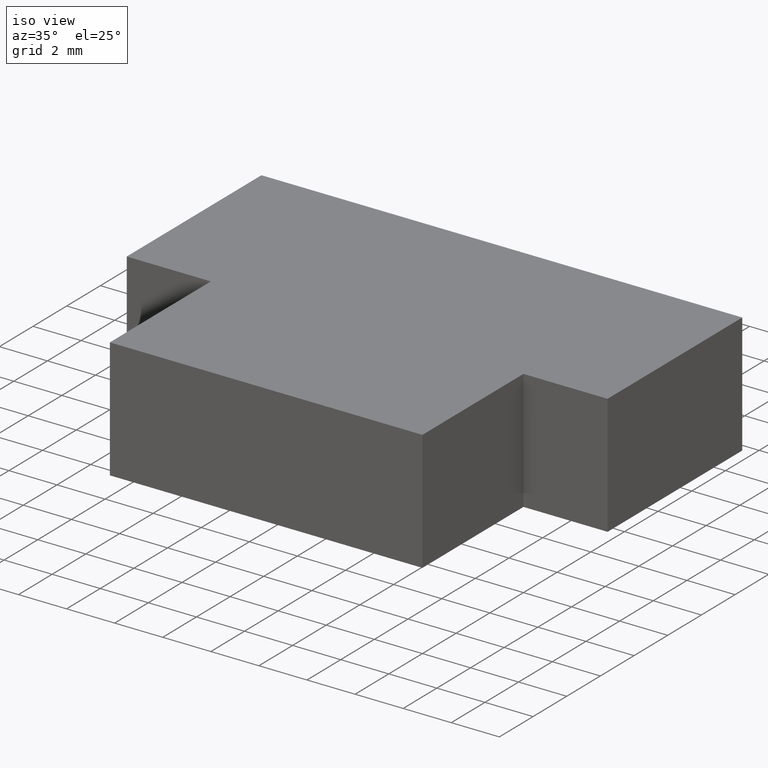
[diagram: clean part render]
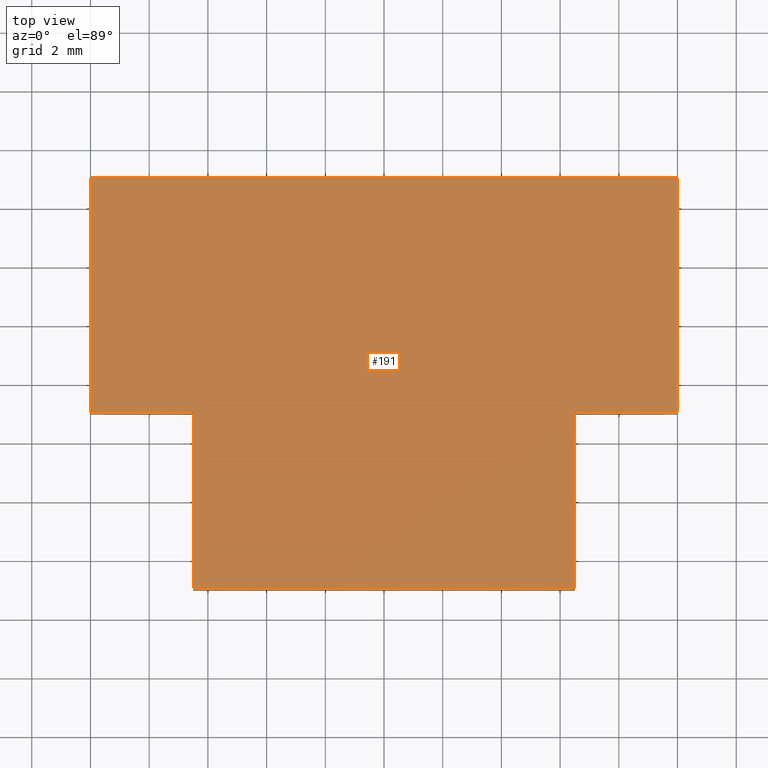
[diagram: tour spotlight — one face highlighted and labeled with its STEP entity id]
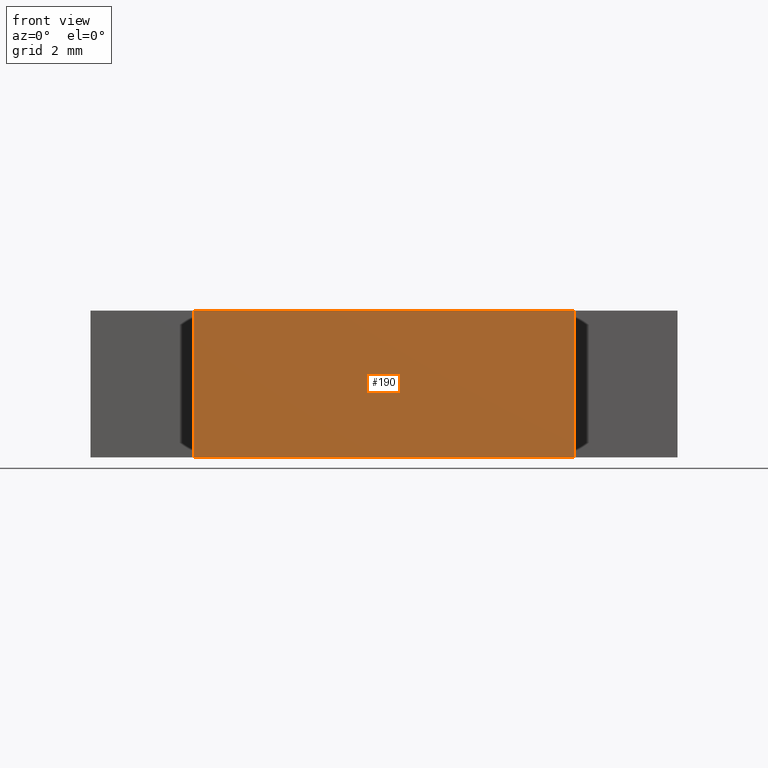
[diagram: tour spotlight — one face highlighted and labeled with its STEP entity id]
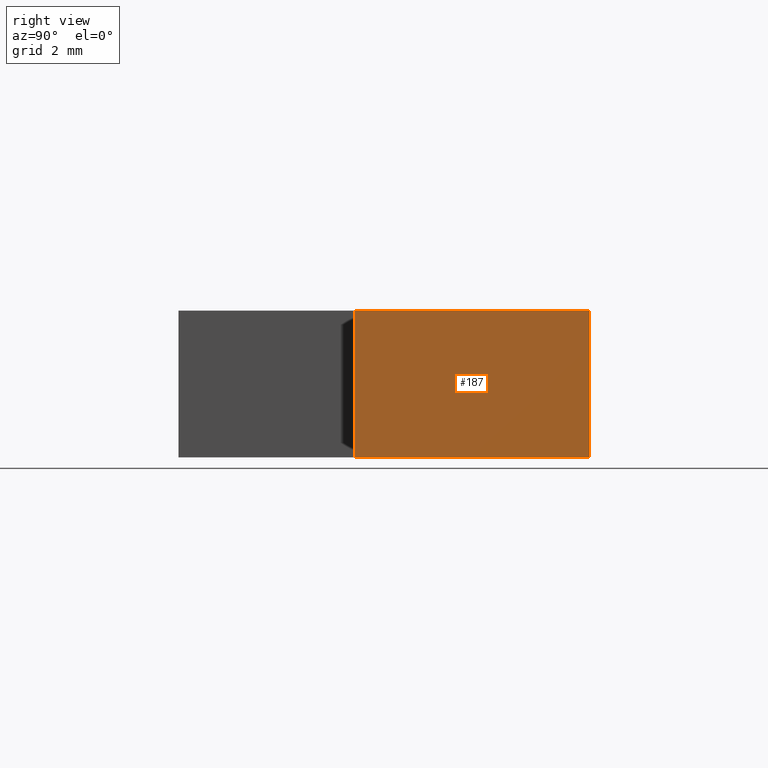
[diagram: tour spotlight — one face highlighted and labeled with its STEP entity id]
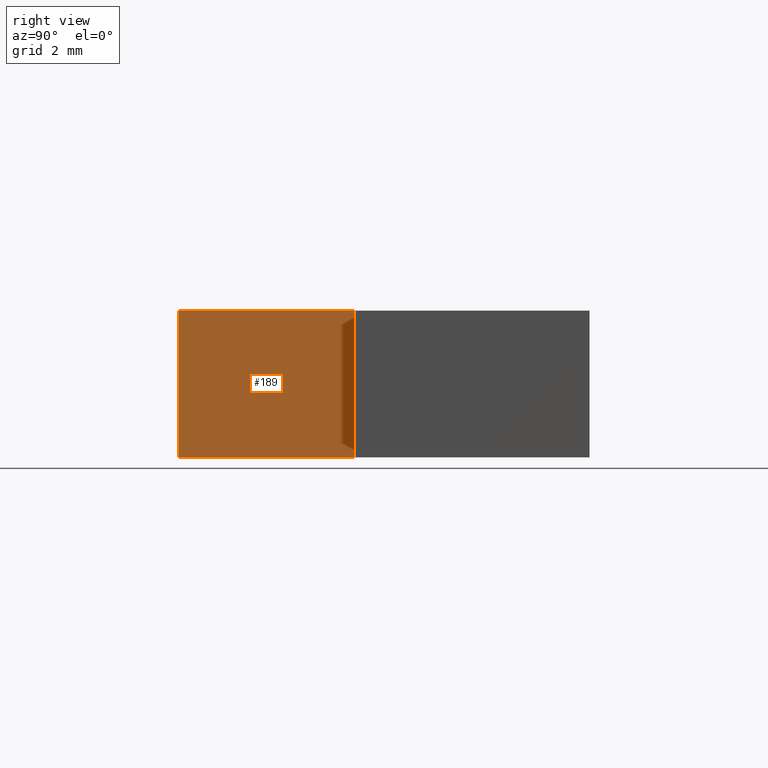
[diagram: tour spotlight — one face highlighted and labeled with its STEP entity id]
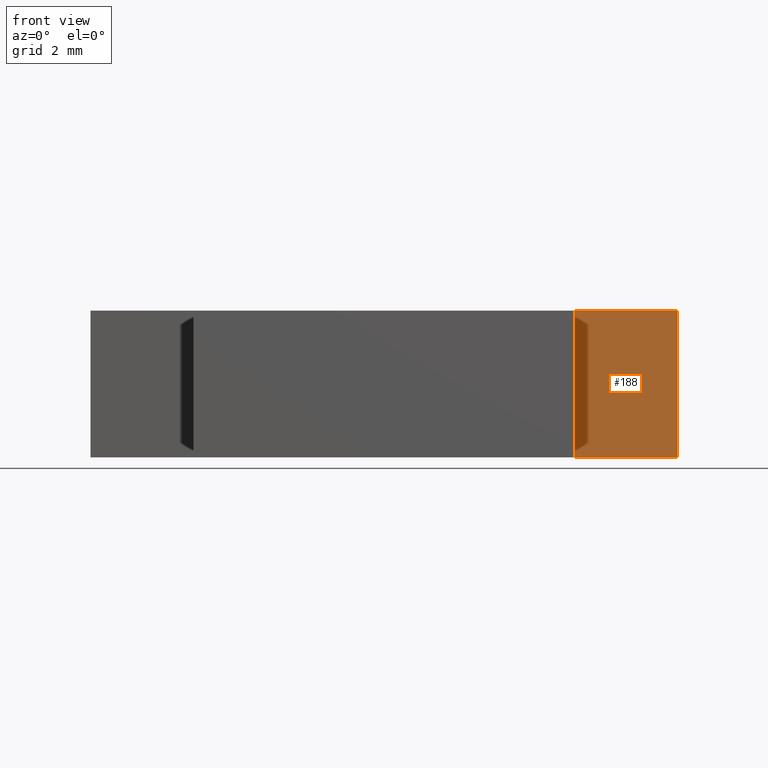
[diagram: tour spotlight — one face highlighted and labeled with its STEP entity id]
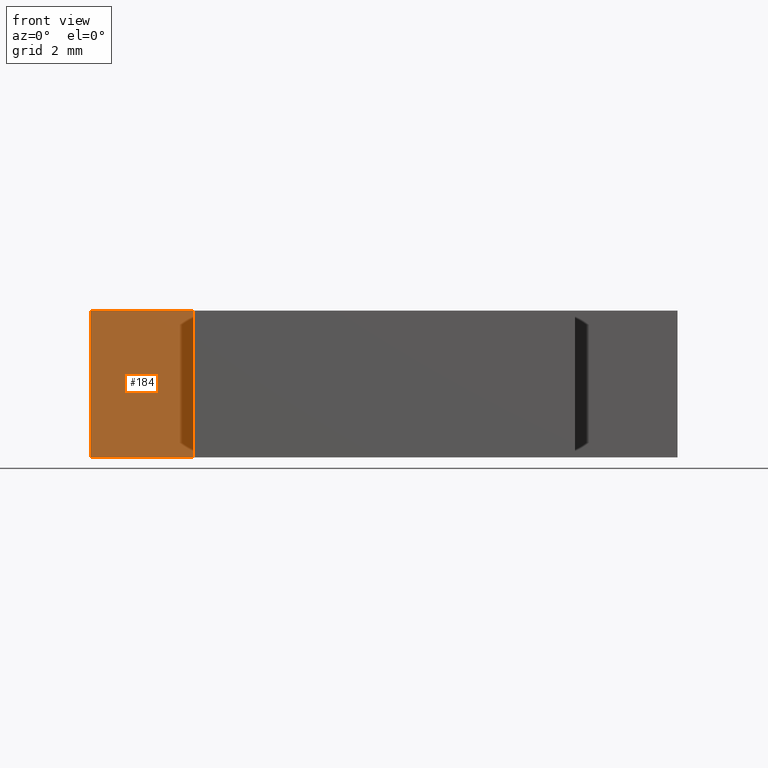
[diagram: tour spotlight — one face highlighted and labeled with its STEP entity id]
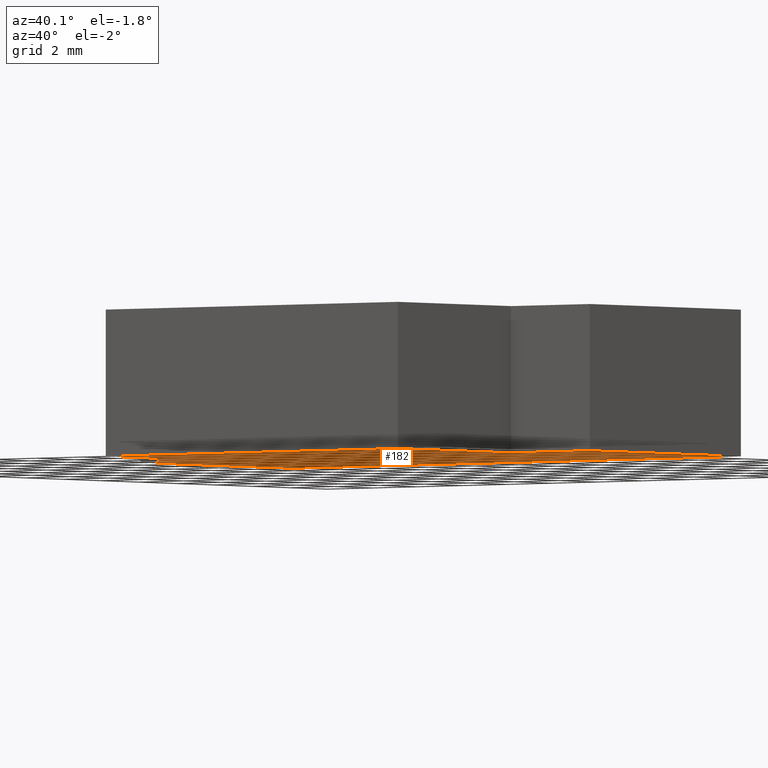
[diagram: tour spotlight — one face highlighted and labeled with its STEP entity id]
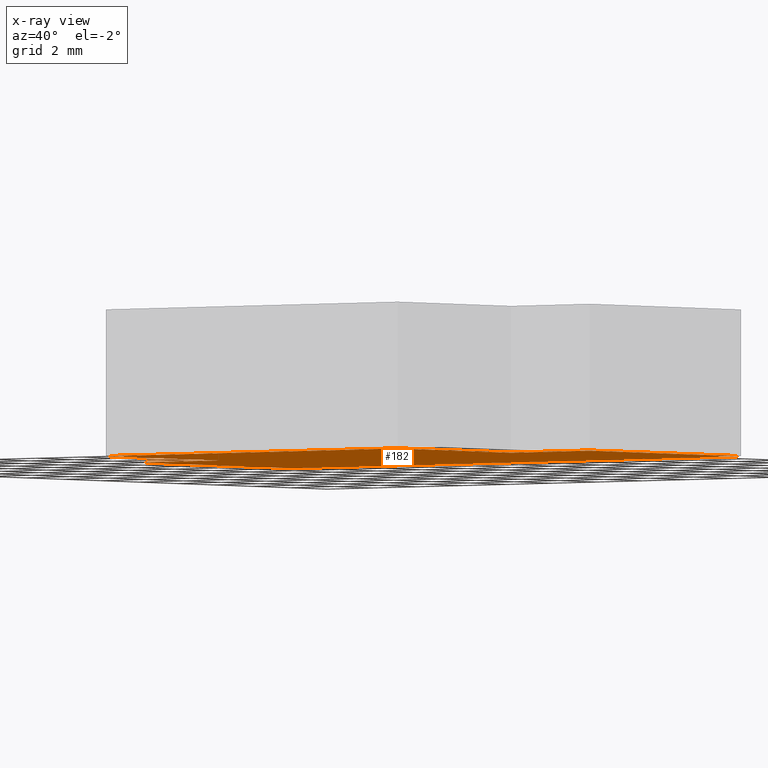
[diagram: x-ray of the same camera — body ghosted, this tour face saturated]
A machine part: a face-by-face anatomy tour. The part has 10 B-rep faces; the first image is the clean iso view, then the 7 largest visible faces are spotlighted one at a time (largest first), each with its STEP entity span.

Face 1 — top view, entity #191. In plain terms, the highlighted planar face has unit normal (0, 0, 1).
Definition (entity closure, byte-faithful):
#25=FACE_OUTER_BOUND('',#35,.T.);
#35=EDGE_LOOP('',(#164,#165,#166,#167,#168,#169,#170,#171));
#44=LINE('',#292,#68);
#47=LINE('',#297,#71);
#49=LINE('',#301,#73);
#51=LINE('',#305,#75);
#53=LINE('',#309,#77);
#55=LINE('',#313,#79);
#57=LINE('',#317,#81);
#59=LINE('',#320,#83);
#68=VECTOR('',#239,10.);
#71=VECTOR('',#244,10.);
#73=VECTOR('',#248,10.);
#75=VECTOR('',#252,10.);
#77=VECTOR('',#256,10.);
#79=VECTOR('',#260,10.);
#81=VECTOR('',#264,10.);
#83=VECTOR('',#268,10.);
#92=VERTEX_POINT('',#290);
#93=VERTEX_POINT('',#291);
#94=VERTEX_POINT('',#296);
#95=VERTEX_POINT('',#300);
#96=VERTEX_POINT('',#304);
#97=VERTEX_POINT('',#308);
#98=VERTEX_POINT('',#312);
#99=VERTEX_POINT('',#316);
#108=EDGE_CURVE('',#92,#93,#44,.T.);
#111=EDGE_CURVE('',#93,#94,#47,.T.);
#113=EDGE_CURVE('',#94,#95,#49,.T.);
#115=EDGE_CURVE('',#95,#96,#51,.T.);
#117=EDGE_CURVE('',#96,#97,#53,.T.);
#119=EDGE_CURVE('',#97,#98,#55,.T.);
#121=EDGE_CURVE('',#98,#99,#57,.T.);
#123=EDGE_CURVE('',#99,#92,#59,.T.);
#164=ORIENTED_EDGE('',*,*,#108,.F.);
#165=ORIENTED_EDGE('',*,*,#123,.F.);
#166=ORIENTED_EDGE('',*,*,#121,.F.);
#167=ORIENTED_EDGE('',*,*,#119,.F.);
#168=ORIENTED_EDGE('',*,*,#117,.F.);
#169=ORIENTED_EDGE('',*,*,#115,.F.);
#170=ORIENTED_EDGE('',*,*,#113,.F.);
#171=ORIENTED_EDGE('',*,*,#111,.F.);
#181=PLANE('',#224);
#191=ADVANCED_FACE('',(#25),#181,.T.);
#224=AXIS2_PLACEMENT_3D('',#321,#269,#270);
#239=DIRECTION('',(-1.85037170770859E-16,1.,0.));
#244=DIRECTION('',(-1.,-1.18952466924124E-16,0.));
#248=DIRECTION('',(0.,1.,0.));
#252=DIRECTION('',(1.,0.,0.));
#256=DIRECTION('',(0.,-1.,0.));
#260=DIRECTION('',(-1.,1.18952466924124E-16,0.));
#264=DIRECTION('',(-1.85037170770859E-16,-1.,0.));
#268=DIRECTION('',(-1.,0.,0.));
#269=DIRECTION('center_axis',(0.,0.,1.));
#270=DIRECTION('ref_axis',(1.,0.,0.));
#290=CARTESIAN_POINT('',(-6.5,-7.,2.5));
#291=CARTESIAN_POINT('',(-6.5,-0.999999999999996,2.5));
#292=CARTESIAN_POINT('',(-6.5,-7.,2.5));
#296=CARTESIAN_POINT('',(-10.,-0.999999999999996,2.5));
#297=CARTESIAN_POINT('',(-6.5,-0.999999999999996,2.5));
#300=CARTESIAN_POINT('',(-10.,7.,2.5));
#301=CARTESIAN_POINT('',(-10.,-0.999999999999996,2.5));
#304=CARTESIAN_POINT('',(10.,7.,2.5));
#305=CARTESIAN_POINT('',(-10.,7.,2.5));
#308=CARTESIAN_POINT('',(10.,-0.999999999999996,2.5));
#309=CARTESIAN_POINT('',(10.,7.,2.5));
#312=CARTESIAN_POINT('',(6.5,-0.999999999999996,2.5));
#313=CARTESIAN_POINT('',(10.,-0.999999999999996,2.5));
#316=CARTESIAN_POINT('',(6.5,-7.,2.5));
#317=CARTESIAN_POINT('',(6.5,-0.999999999999996,2.5));
#320=CARTESIAN_POINT('',(6.5,-7.,2.5));
#321=CARTESIAN_POINT('Origin',(3.46944695195361E-16,0.61764705882353,2.5));

Face 2 — front view, entity #190. In plain terms, the highlighted planar face has unit normal (0, -1, 0).
Definition (entity closure, byte-faithful):
#24=FACE_OUTER_BOUND('',#34,.T.);
#34=EDGE_LOOP('',(#160,#161,#162,#163));
#37=LINE('',#277,#61);
#46=LINE('',#294,#70);
#58=LINE('',#318,#82);
#59=LINE('',#320,#83);
#61=VECTOR('',#230,10.);
#70=VECTOR('',#241,10.);
#82=VECTOR('',#265,10.);
#83=VECTOR('',#268,10.);
#84=VERTEX_POINT('',#273);
#86=VERTEX_POINT('',#276);
#92=VERTEX_POINT('',#290);
#99=VERTEX_POINT('',#316);
#101=EDGE_CURVE('',#86,#84,#37,.T.);
#110=EDGE_CURVE('',#92,#86,#46,.T.);
#122=EDGE_CURVE('',#84,#99,#58,.T.);
#123=EDGE_CURVE('',#99,#92,#59,.T.);
#160=ORIENTED_EDGE('',*,*,#123,.T.);
#161=ORIENTED_EDGE('',*,*,#110,.T.);
#162=ORIENTED_EDGE('',*,*,#101,.T.);
#163=ORIENTED_EDGE('',*,*,#122,.T.);
#180=PLANE('',#223);
#190=ADVANCED_FACE('',(#24),#180,.T.);
#223=AXIS2_PLACEMENT_3D('',#319,#266,#267);
#230=DIRECTION('',(1.,0.,0.));
#241=DIRECTION('',(0.,0.,-1.));
#265=DIRECTION('',(0.,0.,1.));
#266=DIRECTION('center_axis',(0.,-1.,0.));
#267=DIRECTION('ref_axis',(0.,0.,-1.));
#268=DIRECTION('',(-1.,0.,0.));
#273=CARTESIAN_POINT('',(6.5,-7.,-2.5));
#276=CARTESIAN_POINT('',(-6.5,-7.,-2.5));
#277=CARTESIAN_POINT('',(6.5,-7.,-2.5));
#290=CARTESIAN_POINT('',(-6.5,-7.,2.5));
#294=CARTESIAN_POINT('',(-6.5,-7.,0.));
#316=CARTESIAN_POINT('',(6.5,-7.,2.5));
#318=CARTESIAN_POINT('',(6.5,-7.,0.));
#319=CARTESIAN_POINT('Origin',(6.5,-7.,0.));
#320=CARTESIAN_POINT('',(6.5,-7.,2.5));

Face 3 — right view, entity #187. In plain terms, the highlighted planar face has unit normal (1, 0, 0).
Definition (entity closure, byte-faithful):
#21=FACE_OUTER_BOUND('',#31,.T.);
#31=EDGE_LOOP('',(#148,#149,#150,#151));
#42=LINE('',#287,#66);
#52=LINE('',#306,#76);
#53=LINE('',#309,#77);
#54=LINE('',#310,#78);
#66=VECTOR('',#235,10.);
#76=VECTOR('',#253,10.);
#77=VECTOR('',#256,10.);
#78=VECTOR('',#257,10.);
#90=VERTEX_POINT('',#284);
#91=VERTEX_POINT('',#286);
#96=VERTEX_POINT('',#304);
#97=VERTEX_POINT('',#308);
#106=EDGE_CURVE('',#91,#90,#42,.T.);
#116=EDGE_CURVE('',#96,#90,#52,.T.);
#117=EDGE_CURVE('',#96,#97,#53,.T.);
#118=EDGE_CURVE('',#97,#91,#54,.T.);
#148=ORIENTED_EDGE('',*,*,#117,.T.);
#149=ORIENTED_EDGE('',*,*,#118,.T.);
#150=ORIENTED_EDGE('',*,*,#106,.T.);
#151=ORIENTED_EDGE('',*,*,#116,.F.);
#177=PLANE('',#220);
#187=ADVANCED_FACE('',(#21),#177,.T.);
#220=AXIS2_PLACEMENT_3D('',#307,#254,#255);
#235=DIRECTION('',(0.,1.,0.));
#253=DIRECTION('',(0.,0.,-1.));
#254=DIRECTION('center_axis',(1.,0.,0.));
#255=DIRECTION('ref_axis',(0.,0.,-1.));
#256=DIRECTION('',(0.,-1.,0.));
#257=DIRECTION('',(0.,0.,-1.));
#284=CARTESIAN_POINT('',(10.,7.,-2.5));
#286=CARTESIAN_POINT('',(10.,-0.999999999999996,-2.5));
#287=CARTESIAN_POINT('',(10.,7.,-2.5));
#304=CARTESIAN_POINT('',(10.,7.,2.5));
#306=CARTESIAN_POINT('',(10.,7.,0.));
#307=CARTESIAN_POINT('Origin',(10.,7.,0.));
#308=CARTESIAN_POINT('',(10.,-0.999999999999996,2.5));
#309=CARTESIAN_POINT('',(10.,7.,2.5));
#310=CARTESIAN_POINT('',(10.,-0.999999999999996,0.));

Face 4 — right view, entity #189. In plain terms, the highlighted planar face has unit normal (1, -0, 0).
Definition (entity closure, byte-faithful):
#23=FACE_OUTER_BOUND('',#33,.T.);
#33=EDGE_LOOP('',(#156,#157,#158,#159));
#36=LINE('',#275,#60);
#56=LINE('',#314,#80);
#57=LINE('',#317,#81);
#58=LINE('',#318,#82);
#60=VECTOR('',#229,10.);
#80=VECTOR('',#261,10.);
#81=VECTOR('',#264,10.);
#82=VECTOR('',#265,10.);
#84=VERTEX_POINT('',#273);
#85=VERTEX_POINT('',#274);
#98=VERTEX_POINT('',#312);
#99=VERTEX_POINT('',#316);
#100=EDGE_CURVE('',#84,#85,#36,.T.);
#120=EDGE_CURVE('',#98,#85,#56,.T.);
#121=EDGE_CURVE('',#98,#99,#57,.T.);
#122=EDGE_CURVE('',#84,#99,#58,.T.);
#156=ORIENTED_EDGE('',*,*,#121,.T.);
#157=ORIENTED_EDGE('',*,*,#122,.F.);
#158=ORIENTED_EDGE('',*,*,#100,.T.);
#159=ORIENTED_EDGE('',*,*,#120,.F.);
#179=PLANE('',#222);
#189=ADVANCED_FACE('',(#23),#179,.T.);
#222=AXIS2_PLACEMENT_3D('',#315,#262,#263);
#229=DIRECTION('',(1.85037170770859E-16,1.,0.));
#261=DIRECTION('',(0.,0.,-1.));
#262=DIRECTION('center_axis',(1.,-1.85037170770859E-16,0.));
#263=DIRECTION('ref_axis',(0.,0.,-1.));
#264=DIRECTION('',(-1.85037170770859E-16,-1.,0.));
#265=DIRECTION('',(0.,0.,1.));
#273=CARTESIAN_POINT('',(6.5,-7.,-2.5));
#274=CARTESIAN_POINT('',(6.5,-0.999999999999996,-2.5));
#275=CARTESIAN_POINT('',(6.5,-0.999999999999996,-2.5));
#312=CARTESIAN_POINT('',(6.5,-0.999999999999996,2.5));
#314=CARTESIAN_POINT('',(6.5,-0.999999999999996,0.));
#315=CARTESIAN_POINT('Origin',(6.5,-0.999999999999996,0.));
#316=CARTESIAN_POINT('',(6.5,-7.,2.5));
#317=CARTESIAN_POINT('',(6.5,-0.999999999999996,2.5));
#318=CARTESIAN_POINT('',(6.5,-7.,0.));

Face 5 — front view, entity #188. In plain terms, the highlighted planar face has unit normal (-0, -1, 0).
Definition (entity closure, byte-faithful):
#22=FACE_OUTER_BOUND('',#32,.T.);
#32=EDGE_LOOP('',(#152,#153,#154,#155));
#43=LINE('',#288,#67);
#54=LINE('',#310,#78);
#55=LINE('',#313,#79);
#56=LINE('',#314,#80);
#67=VECTOR('',#236,10.);
#78=VECTOR('',#257,10.);
#79=VECTOR('',#260,10.);
#80=VECTOR('',#261,10.);
#85=VERTEX_POINT('',#274);
#91=VERTEX_POINT('',#286);
#97=VERTEX_POINT('',#308);
#98=VERTEX_POINT('',#312);
#107=EDGE_CURVE('',#85,#91,#43,.T.);
#118=EDGE_CURVE('',#97,#91,#54,.T.);
#119=EDGE_CURVE('',#97,#98,#55,.T.);
#120=EDGE_CURVE('',#98,#85,#56,.T.);
#152=ORIENTED_EDGE('',*,*,#119,.T.);
#153=ORIENTED_EDGE('',*,*,#120,.T.);
#154=ORIENTED_EDGE('',*,*,#107,.T.);
#155=ORIENTED_EDGE('',*,*,#118,.F.);
#178=PLANE('',#221);
#188=ADVANCED_FACE('',(#22),#178,.T.);
#221=AXIS2_PLACEMENT_3D('',#311,#258,#259);
#236=DIRECTION('',(1.,-1.18952466924124E-16,0.));
#257=DIRECTION('',(0.,0.,-1.));
#258=DIRECTION('center_axis',(-1.18952466924124E-16,-1.,0.));
#259=DIRECTION('ref_axis',(0.,0.,-1.));
#260=DIRECTION('',(-1.,1.18952466924124E-16,0.));
#261=DIRECTION('',(0.,0.,-1.));
#274=CARTESIAN_POINT('',(6.5,-0.999999999999996,-2.5));
#286=CARTESIAN_POINT('',(10.,-0.999999999999996,-2.5));
#288=CARTESIAN_POINT('',(10.,-0.999999999999996,-2.5));
#308=CARTESIAN_POINT('',(10.,-0.999999999999996,2.5));
#310=CARTESIAN_POINT('',(10.,-0.999999999999996,0.));
#311=CARTESIAN_POINT('Origin',(10.,-0.999999999999996,0.));
#312=CARTESIAN_POINT('',(6.5,-0.999999999999996,2.5));
#313=CARTESIAN_POINT('',(10.,-0.999999999999996,2.5));
#314=CARTESIAN_POINT('',(6.5,-0.999999999999996,0.));

Face 6 — front view, entity #184. In plain terms, the highlighted planar face has unit normal (0, -1, 0).
Definition (entity closure, byte-faithful):
#18=FACE_OUTER_BOUND('',#28,.T.);
#28=EDGE_LOOP('',(#136,#137,#138,#139));
#39=LINE('',#281,#63);
#45=LINE('',#293,#69);
#47=LINE('',#297,#71);
#48=LINE('',#298,#72);
#63=VECTOR('',#232,10.);
#69=VECTOR('',#240,10.);
#71=VECTOR('',#244,10.);
#72=VECTOR('',#245,10.);
#87=VERTEX_POINT('',#278);
#88=VERTEX_POINT('',#280);
#93=VERTEX_POINT('',#291);
#94=VERTEX_POINT('',#296);
#103=EDGE_CURVE('',#88,#87,#39,.T.);
#109=EDGE_CURVE('',#93,#87,#45,.T.);
#111=EDGE_CURVE('',#93,#94,#47,.T.);
#112=EDGE_CURVE('',#94,#88,#48,.T.);
#136=ORIENTED_EDGE('',*,*,#111,.T.);
#137=ORIENTED_EDGE('',*,*,#112,.T.);
#138=ORIENTED_EDGE('',*,*,#103,.T.);
#139=ORIENTED_EDGE('',*,*,#109,.F.);
#174=PLANE('',#217);
#184=ADVANCED_FACE('',(#18),#174,.T.);
#217=AXIS2_PLACEMENT_3D('',#295,#242,#243);
#232=DIRECTION('',(1.,1.18952466924124E-16,0.));
#240=DIRECTION('',(0.,0.,-1.));
#242=DIRECTION('center_axis',(1.18952466924124E-16,-1.,0.));
#243=DIRECTION('ref_axis',(0.,0.,-1.));
#244=DIRECTION('',(-1.,-1.18952466924124E-16,0.));
#245=DIRECTION('',(0.,0.,-1.));
#278=CARTESIAN_POINT('',(-6.5,-0.999999999999996,-2.5));
#280=CARTESIAN_POINT('',(-10.,-0.999999999999996,-2.5));
#281=CARTESIAN_POINT('',(-6.5,-0.999999999999996,-2.5));
#291=CARTESIAN_POINT('',(-6.5,-0.999999999999996,2.5));
#293=CARTESIAN_POINT('',(-6.5,-0.999999999999996,0.));
#295=CARTESIAN_POINT('Origin',(-6.5,-0.999999999999996,0.));
#296=CARTESIAN_POINT('',(-10.,-0.999999999999996,2.5));
#297=CARTESIAN_POINT('',(-6.5,-0.999999999999996,2.5));
#298=CARTESIAN_POINT('',(-10.,-0.999999999999996,0.));

Face 7 — auxiliary view, entity #182. An x-ray twin of the same camera follows (body ghosted, this face saturated) — the face is partly hidden behind the body. In plain terms, the highlighted planar face has unit normal (0, 0, 1).
Definition (entity closure, byte-faithful):
#16=FACE_OUTER_BOUND('',#26,.T.);
#26=EDGE_LOOP('',(#124,#125,#126,#127,#128,#129,#130,#131));
#36=LINE('',#275,#60);
#37=LINE('',#277,#61);
#38=LINE('',#279,#62);
#39=LINE('',#281,#63);
#40=LINE('',#283,#64);
#41=LINE('',#285,#65);
#42=LINE('',#287,#66);
#43=LINE('',#288,#67);
#60=VECTOR('',#229,10.);
#61=VECTOR('',#230,10.);
#62=VECTOR('',#231,10.);
#63=VECTOR('',#232,10.);
#64=VECTOR('',#233,10.);
#65=VECTOR('',#234,10.);
#66=VECTOR('',#235,10.);
#67=VECTOR('',#236,10.);
#84=VERTEX_POINT('',#273);
#85=VERTEX_POINT('',#274);
#86=VERTEX_POINT('',#276);
#87=VERTEX_POINT('',#278);
#88=VERTEX_POINT('',#280);
#89=VERTEX_POINT('',#282);
#90=VERTEX_POINT('',#284);
#91=VERTEX_POINT('',#286);
#100=EDGE_CURVE('',#84,#85,#36,.T.);
#101=EDGE_CURVE('',#86,#84,#37,.T.);
#102=EDGE_CURVE('',#87,#86,#38,.T.);
#103=EDGE_CURVE('',#88,#87,#39,.T.);
#104=EDGE_CURVE('',#89,#88,#40,.T.);
#105=EDGE_CURVE('',#90,#89,#41,.T.);
#106=EDGE_CURVE('',#91,#90,#42,.T.);
#107=EDGE_CURVE('',#85,#91,#43,.T.);
#124=ORIENTED_EDGE('',*,*,#100,.F.);
#125=ORIENTED_EDGE('',*,*,#101,.F.);
#126=ORIENTED_EDGE('',*,*,#102,.F.);
#127=ORIENTED_EDGE('',*,*,#103,.F.);
#128=ORIENTED_EDGE('',*,*,#104,.F.);
#129=ORIENTED_EDGE('',*,*,#105,.F.);
#130=ORIENTED_EDGE('',*,*,#106,.F.);
#131=ORIENTED_EDGE('',*,*,#107,.F.);
#172=PLANE('',#215);
#182=ADVANCED_FACE('',(#16),#172,.F.);
#215=AXIS2_PLACEMENT_3D('',#272,#227,#228);
#227=DIRECTION('center_axis',(0.,0.,1.));
#228=DIRECTION('ref_axis',(1.,0.,0.));
#229=DIRECTION('',(1.85037170770859E-16,1.,0.));
#230=DIRECTION('',(1.,0.,0.));
#231=DIRECTION('',(1.85037170770859E-16,-1.,0.));
#232=DIRECTION('',(1.,1.18952466924124E-16,0.));
#233=DIRECTION('',(0.,-1.,0.));
#234=DIRECTION('',(-1.,0.,0.));
#235=DIRECTION('',(0.,1.,0.));
#236=DIRECTION('',(1.,-1.18952466924124E-16,0.));
#272=CARTESIAN_POINT('Origin',(2.08166817117217E-16,0.61764705882353,-2.5));
#273=CARTESIAN_POINT('',(6.5,-7.,-2.5));
#274=CARTESIAN_POINT('',(6.5,-0.999999999999996,-2.5));
#275=CARTESIAN_POINT('',(6.5,-0.999999999999996,-2.5));
#276=CARTESIAN_POINT('',(-6.5,-7.,-2.5));
#277=CARTESIAN_POINT('',(6.5,-7.,-2.5));
#278=CARTESIAN_POINT('',(-6.5,-0.999999999999996,-2.5));
#279=CARTESIAN_POINT('',(-6.5,-7.,-2.5));
#280=CARTESIAN_POINT('',(-10.,-0.999999999999996,-2.5));
#281=CARTESIAN_POINT('',(-6.5,-0.999999999999996,-2.5));
#282=CARTESIAN_POINT('',(-10.,7.,-2.5));
#283=CARTESIAN_POINT('',(-10.,-0.999999999999996,-2.5));
#284=CARTESIAN_POINT('',(10.,7.,-2.5));
#285=CARTESIAN_POINT('',(-10.,7.,-2.5));
#286=CARTESIAN_POINT('',(10.,-0.999999999999996,-2.5));
#287=CARTESIAN_POINT('',(10.,7.,-2.5));
#288=CARTESIAN_POINT('',(10.,-0.999999999999996,-2.5));